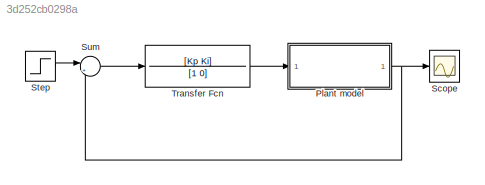
MODEL slx_3d252cb0298a
KIND model
CONFIG AbsTol = auto
CONFIG EnableMultiTasking = off
CONFIG FixedStep = auto
CONFIG MaxStep = auto
CONFIG MinStep = auto
CONFIG RelTol = 1e-3
CONFIG SampleTimeConstraint = Unconstrained
CONFIG SolverName = VariableStepAuto
CONFIG StartTime = 0.0
CONFIG StopTime = 10.0
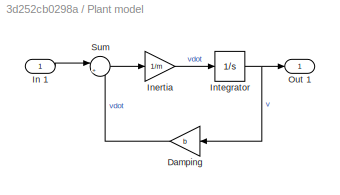
BLOCK [SubSystem] Plant model
BLOCK [Gain] Plant model/Damping
  Gain = b
BLOCK [Inport] Plant model/In 1
BLOCK [Gain] Plant model/Inertia
  Gain = 1/m
BLOCK [Integrator] Plant model/Integrator
BLOCK [Outport] Plant model/Out 1
BLOCK [Sum] Plant model/Sum
  Inputs = |+-
BLOCK [Scope] Scope
  Floating = off
  NumInputPorts = 1
  ScopeSpecificationString = Simulink.scopes.TimeScopeBlockCfg('CurrentConfiguration', extmgr.ConfigurationSet(extmgr.Configuration('Core','General UI',true),extmgr.Configuration('Core','Source UI',true),extmgr.Configuration('Sources','WiredSimulink',true),extmgr.Configuration('Visuals','Time Domain',true,'SerializedDisplays',{struct('MinYLimReal','-1.24958','MaxYLimReal','11.24623','YLabelReal','','MinYLimMag','0.00000','Max...<+1368ch>
BLOCK [Step] Step
  After = r
  SampleTime = 0
  Time = 0
BLOCK [Sum] Sum
  Inputs = |+-
BLOCK [TransferFcn] Transfer Fcn
  Denominator = [1 0]
  Numerator = [Kp Ki]
LINE Plant model/Damping:1 -> Plant model/Sum:2
LINE Plant model/In 1:1 -> Plant model/Sum:1
LINE Plant model/Inertia:1 -> Plant model/Integrator:1
NET Plant model/Integrator:1 -> Plant model/Damping:1, Plant model/Out 1:1
LINE Plant model/Sum:1 -> Plant model/Inertia:1
NET Plant model:1 -> Scope:1, Sum:2
LINE Step:1 -> Sum:1
LINE Sum:1 -> Transfer Fcn:1
LINE Transfer Fcn:1 -> Plant model:1
note: NET lines group one-source signal fan-out (src -> all destinations, sorted); 1:1 wires keep LINE
